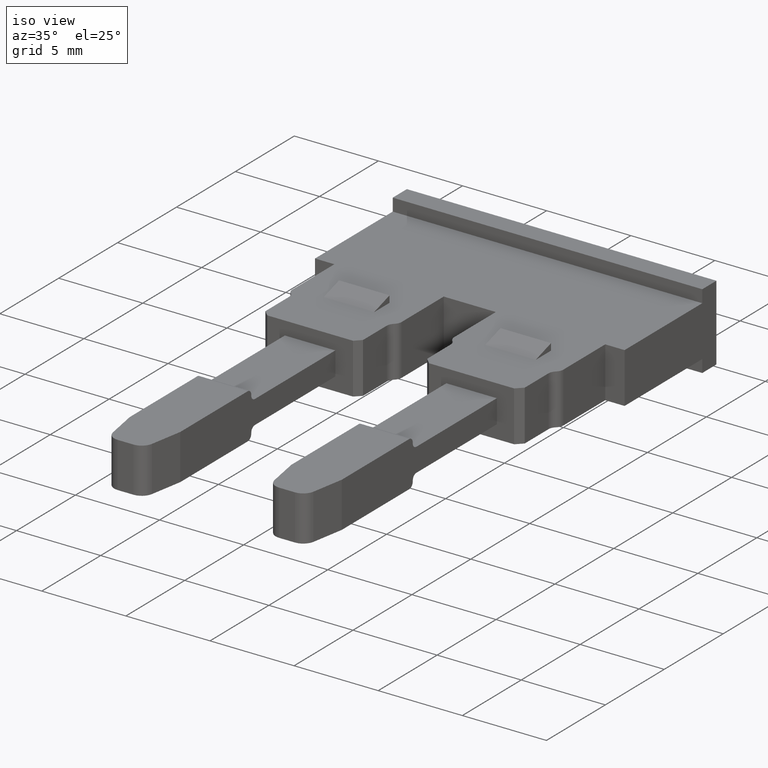
[diagram: clean part render]
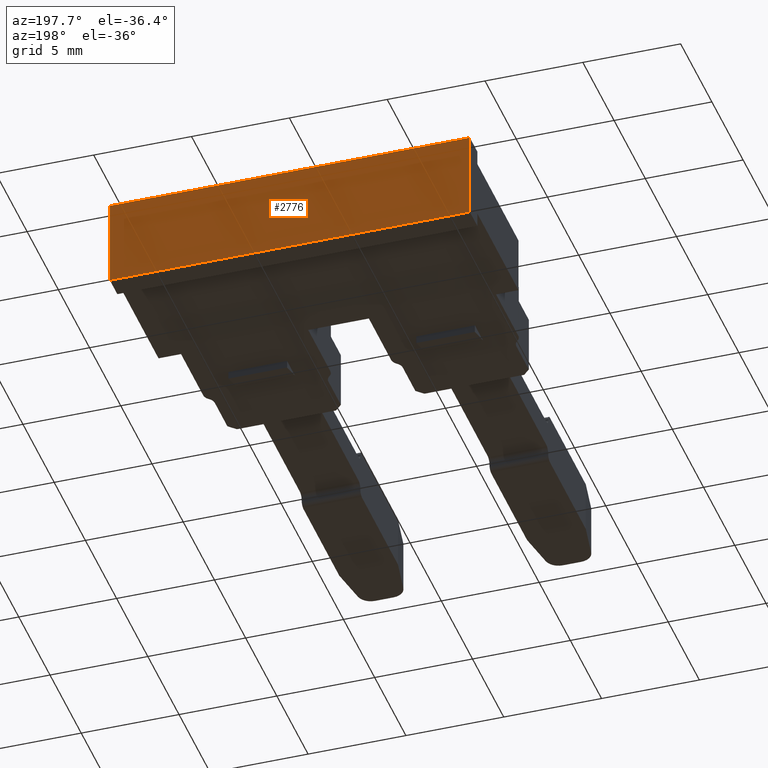
[diagram: tour spotlight — one face highlighted and labeled with its STEP entity id]
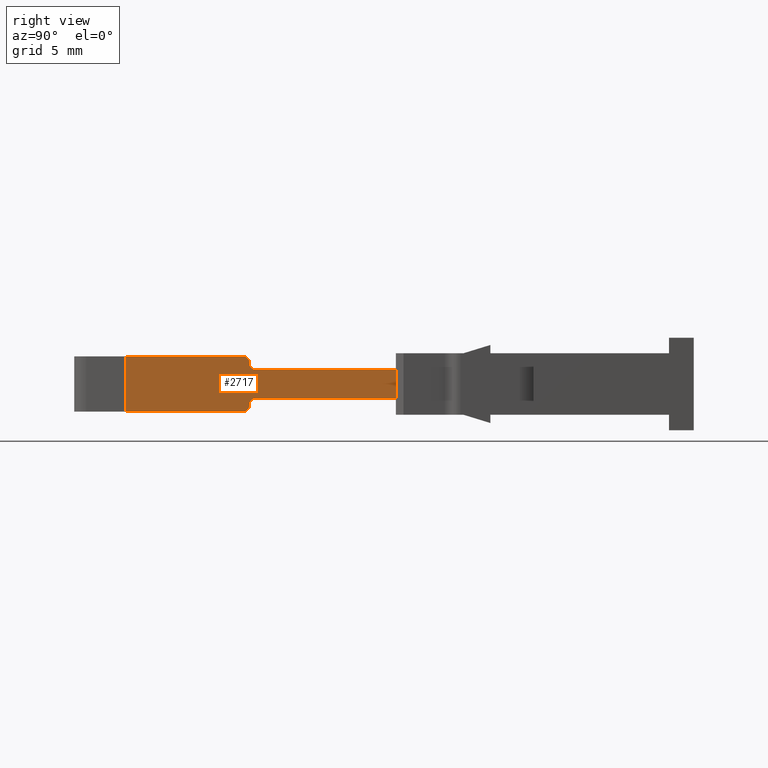
[diagram: tour spotlight — one face highlighted and labeled with its STEP entity id]
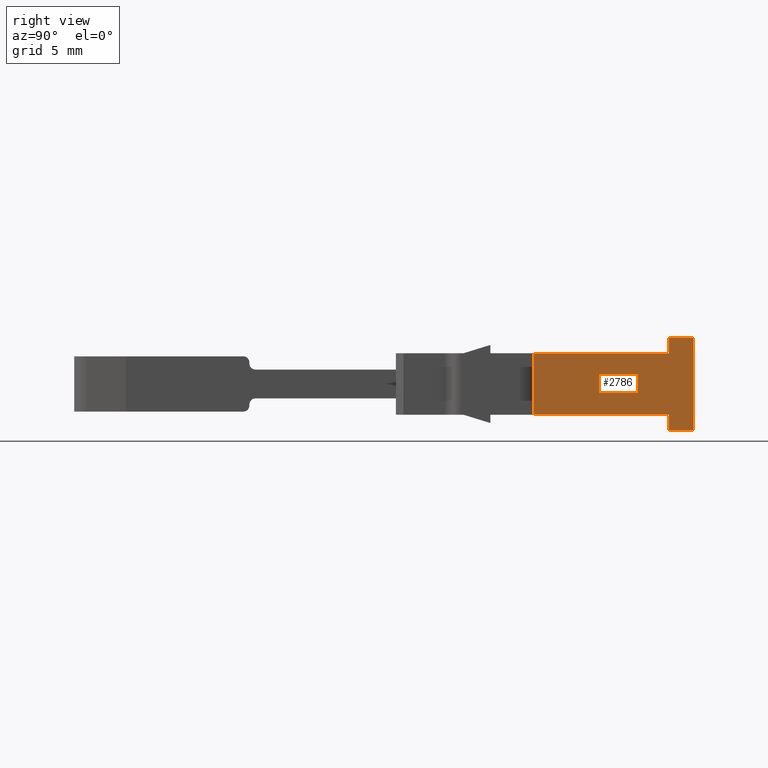
[diagram: tour spotlight — one face highlighted and labeled with its STEP entity id]
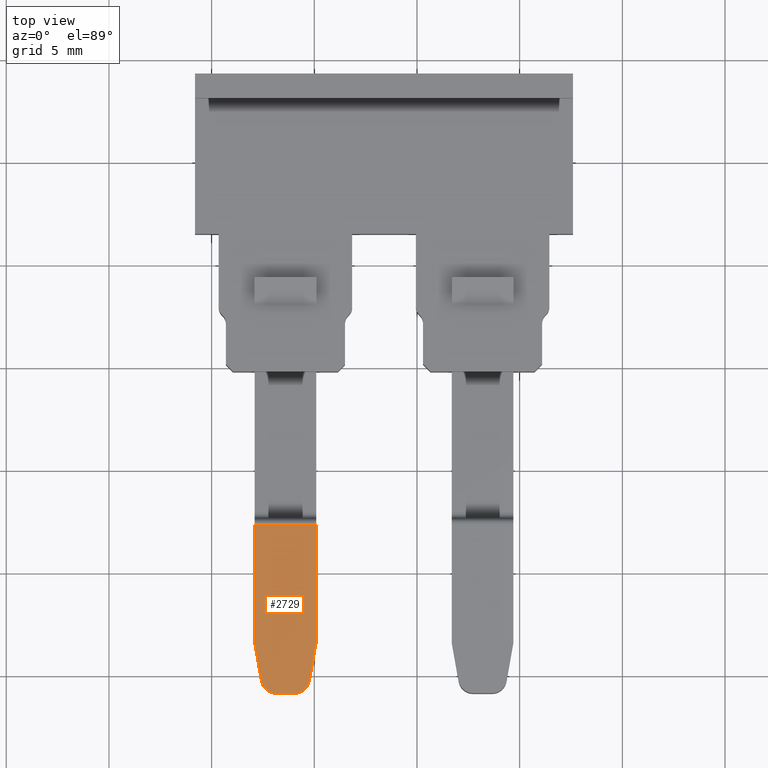
[diagram: tour spotlight — one face highlighted and labeled with its STEP entity id]
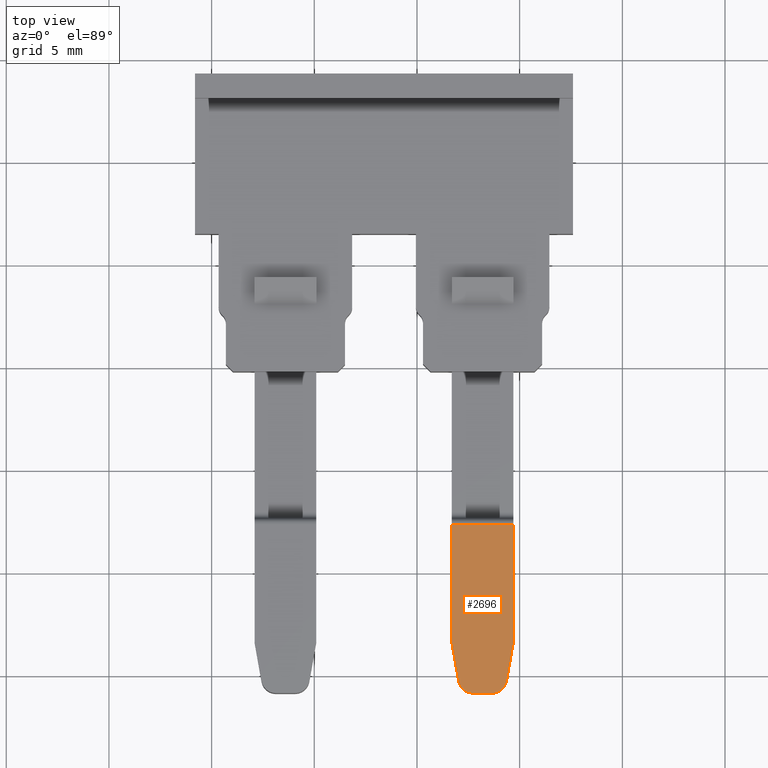
[diagram: tour spotlight — one face highlighted and labeled with its STEP entity id]
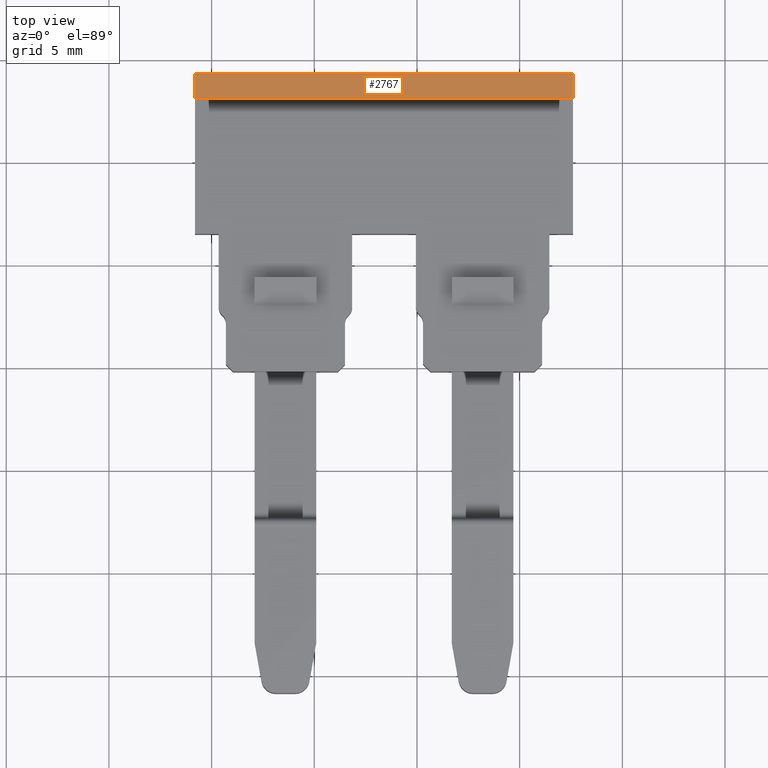
[diagram: tour spotlight — one face highlighted and labeled with its STEP entity id]
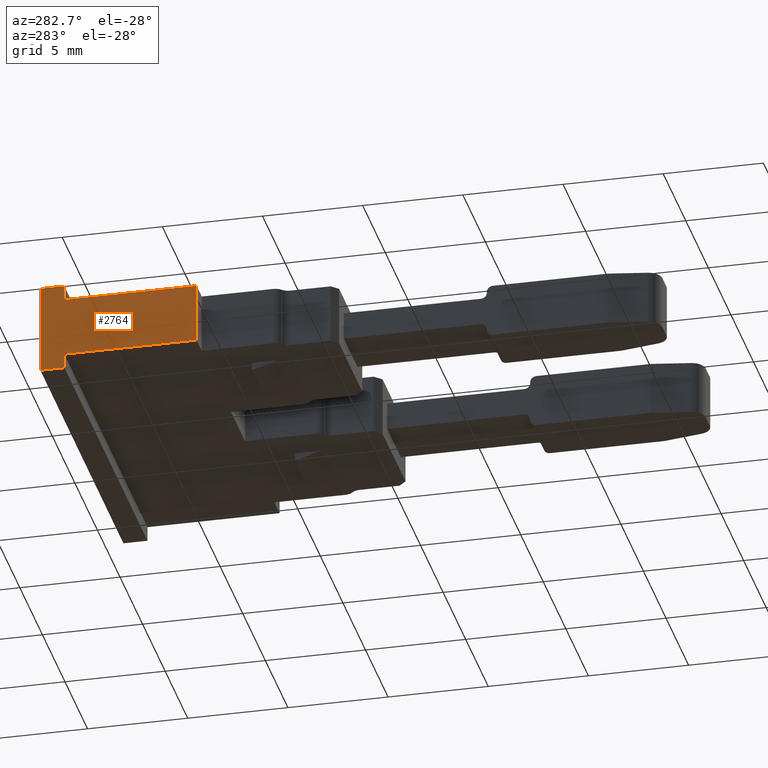
[diagram: tour spotlight — one face highlighted and labeled with its STEP entity id]
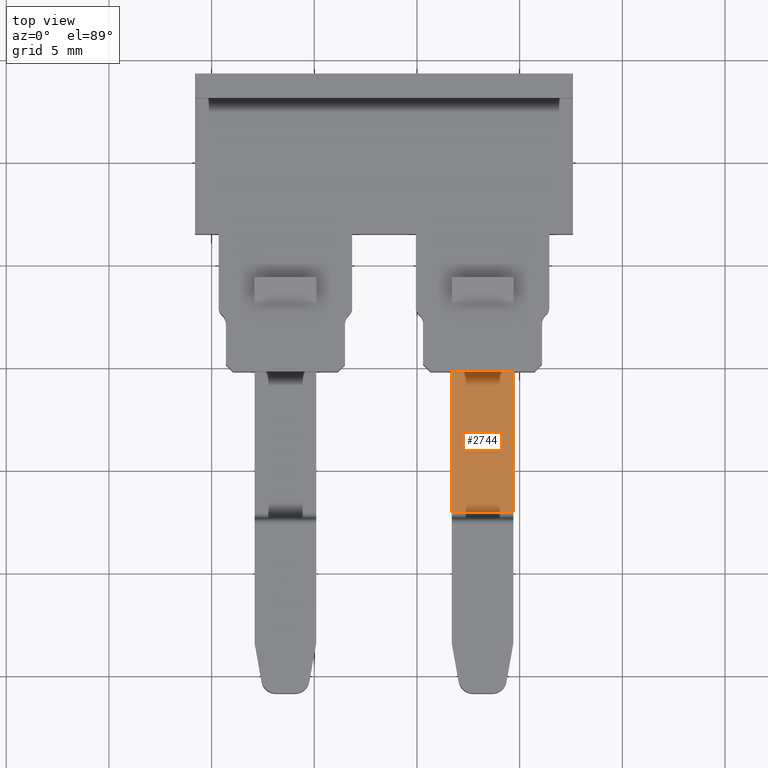
[diagram: tour spotlight — one face highlighted and labeled with its STEP entity id]
A machine part: a face-by-face anatomy tour. The part has 90 B-rep faces; the first image is the clean iso view, then the 8 largest visible faces are spotlighted one at a time (largest first), each with its STEP entity span.

Face 1 — auxiliary view, entity #2776. In plain terms, the highlighted planar face has unit normal (0, -1, 0).
Definition (entity closure, byte-faithful):
#32 = VECTOR ( 'NONE', #1054, 1000.000000000000000 ) ;
#48 = VECTOR ( 'NONE', #1185, 1000.000000000000000 ) ;
#60 = VECTOR ( 'NONE', #1169, 1000.000000000000000 ) ;
#68 = VECTOR ( 'NONE', #1140, 1000.000000000000000 ) ;
#224 = AXIS2_PLACEMENT_3D ( 'NONE', #804, #790, #821 ) ;
#790 = DIRECTION ( 'NONE',  ( 0.0000000000000000000, -1.000000000000000000, 0.0000000000000000000 ) ) ;
#796 = PLANE ( 'NONE',  #224 ) ;
#804 = CARTESIAN_POINT ( 'NONE',  ( 1139.194470802330000, 674.2878760720548100, 3.000000000000000000 ) ) ;
#821 = DIRECTION ( 'NONE',  ( 0.0000000000000000000, -0.0000000000000000000, -1.000000000000000000 ) ) ;
#827 = FACE_OUTER_BOUND ( 'NONE', #2494, .T. ) ;
#1054 = DIRECTION ( 'NONE',  ( 1.000000000000000000, 0.0000000000000000000, 0.0000000000000000000 ) ) ;
#1068 = LINE ( 'NONE', #1088, #32 ) ;
#1088 = CARTESIAN_POINT ( 'NONE',  ( 1139.194470802330000, 674.2878760720548100, -0.7499999999999997800 ) ) ;
#1095 = CARTESIAN_POINT ( 'NONE',  ( 1139.194470802330000, 674.2878760720548100, 3.750000000000000000 ) ) ;
#1115 = LINE ( 'NONE', #1095, #60 ) ;
#1140 = DIRECTION ( 'NONE',  ( -0.0000000000000000000, -0.0000000000000000000, -1.000000000000000000 ) ) ;
#1152 = LINE ( 'NONE', #1164, #68 ) ;
#1164 = CARTESIAN_POINT ( 'NONE',  ( 1157.594465032600300, 674.2878760720548100, 3.000000000000000000 ) ) ;
#1169 = DIRECTION ( 'NONE',  ( -1.000000000000000000, -0.0000000000000000000, -0.0000000000000000000 ) ) ;
#1185 = DIRECTION ( 'NONE',  ( -0.0000000000000000000, -0.0000000000000000000, 1.000000000000000000 ) ) ;
#1188 = LINE ( 'NONE', #1230, #48 ) ;
#1230 = CARTESIAN_POINT ( 'NONE',  ( 1139.194470802330000, 674.2878760720548100, 3.000000000000000000 ) ) ;
#1711 = VERTEX_POINT ( 'NONE', #2389 ) ;
#1745 = VERTEX_POINT ( 'NONE', #2388 ) ;
#1747 = VERTEX_POINT ( 'NONE', #2351 ) ;
#1751 = VERTEX_POINT ( 'NONE', #2360 ) ;
#1942 = ORIENTED_EDGE ( 'NONE', *, *, #2554, .F. ) ;
#1964 = ORIENTED_EDGE ( 'NONE', *, *, #2577, .F. ) ;
#1981 = ORIENTED_EDGE ( 'NONE', *, *, #2597, .T. ) ;
#1982 = ORIENTED_EDGE ( 'NONE', *, *, #2582, .T. ) ;
#2351 = CARTESIAN_POINT ( 'NONE',  ( 1157.594465032600300, 674.2878760720548100, 3.750000000000000000 ) ) ;
#2360 = CARTESIAN_POINT ( 'NONE',  ( 1157.594465032600300, 674.2878760720548100, -0.7499999999999997800 ) ) ;
#2388 = CARTESIAN_POINT ( 'NONE',  ( 1139.194470802330000, 674.2878760720548100, -0.7499999999999997800 ) ) ;
#2389 = CARTESIAN_POINT ( 'NONE',  ( 1139.194470802330000, 674.2878760720548100, 3.750000000000000000 ) ) ;
#2494 = EDGE_LOOP ( 'NONE', ( #1942, #1981, #1964, #1982 ) ) ;
#2554 = EDGE_CURVE ( 'NONE', #1745, #1751, #1068, .T. ) ;
#2577 = EDGE_CURVE ( 'NONE', #1747, #1711, #1115, .T. ) ;
#2582 = EDGE_CURVE ( 'NONE', #1747, #1751, #1152, .T. ) ;
#2597 = EDGE_CURVE ( 'NONE', #1745, #1711, #1188, .T. ) ;
#2776 = ADVANCED_FACE ( 'NONE', ( #827 ), #796, .F. ) ;

Face 2 — right view, entity #2717. In plain terms, the highlighted planar face has unit normal (-1, -0, -0).
Definition (entity closure, byte-faithful):
#211 = AXIS2_PLACEMENT_3D ( 'NONE', #502, #507, #514 ) ;
#291 = VECTOR ( 'NONE', #1498, 1000.000000000000000 ) ;
#294 = VECTOR ( 'NONE', #952, 1000.000000000000000 ) ;
#297 = CIRCLE ( 'NONE', #321, 0.2999999999999672400 ) ;
#304 = VECTOR ( 'NONE', #1621, 1000.000000000000000 ) ;
#308 = VECTOR ( 'NONE', #1624, 1000.000000000000100 ) ;
#310 = CIRCLE ( 'NONE', #311, 0.2999999999999674000 ) ;
#311 = AXIS2_PLACEMENT_3D ( 'NONE', #1602, #1639, #1648 ) ;
#321 = AXIS2_PLACEMENT_3D ( 'NONE', #1461, #1464, #1481 ) ;
#324 = VECTOR ( 'NONE', #1605, 1000.000000000000000 ) ;
#327 = VECTOR ( 'NONE', #1637, 1000.000000000000000 ) ;
#336 = VECTOR ( 'NONE', #971, 1000.000000000000000 ) ;
#340 = CIRCLE ( 'NONE', #341, 0.2999999999999672900 ) ;
#341 = AXIS2_PLACEMENT_3D ( 'NONE', #1617, #1610, #1600 ) ;
#352 = VECTOR ( 'NONE', #1545, 1000.000000000000100 ) ;
#354 = AXIS2_PLACEMENT_3D ( 'NONE', #1535, #1509, #1516 ) ;
#375 = CIRCLE ( 'NONE', #354, 0.2999999999999328800 ) ;
#487 = FACE_OUTER_BOUND ( 'NONE', #2529, .T. ) ;
#497 = PLANE ( 'NONE',  #211 ) ;
#502 = CARTESIAN_POINT ( 'NONE',  ( 1154.694458151265500, 634.1732509684160300, 1.500000000000051500 ) ) ;
#507 = DIRECTION ( 'NONE',  ( -0.9999999999997435400, -7.162729585980652700E-007, -5.364441115333136100E-014 ) ) ;
#514 = DIRECTION ( 'NONE',  ( 7.162729585980651700E-007, -0.9999999999997434300, 0.0000000000000000000 ) ) ;
#860 = LINE ( 'NONE', #1608, #308 ) ;
#952 = DIRECTION ( 'NONE',  ( 5.364441115334512500E-014, 0.0000000000000000000, -1.000000000000000000 ) ) ;
#971 = DIRECTION ( 'NONE',  ( -5.677532115032497500E-037, -1.000000000000000000, 1.058364141383339600E-023 ) ) ;
#974 = LINE ( 'NONE', #985, #294 ) ;
#983 = CARTESIAN_POINT ( 'NONE',  ( 1154.694444914909600, 641.5303140484550100, 2.200000000000050800 ) ) ;
#984 = LINE ( 'NONE', #983, #336 ) ;
#985 = CARTESIAN_POINT ( 'NONE',  ( 1154.694439803195100, 659.7892820011524000, 3.759999999999862100 ) ) ;
#1461 = CARTESIAN_POINT ( 'NONE',  ( 1154.694440091514700, 652.3527367076559400, 0.4522013187407246700 ) ) ;
#1464 = DIRECTION ( 'NONE',  ( -1.000000000000000000, 0.0000000000000000000, -5.364441115151316900E-014 ) ) ;
#1472 = LINE ( 'NONE', #1492, #291 ) ;
#1481 = DIRECTION ( 'NONE',  ( 0.0000000000000000000, 0.0000000000000000000, 1.000000000000000000 ) ) ;
#1492 = CARTESIAN_POINT ( 'NONE',  ( 1154.694440091515200, 652.6527367076765800, -8.894767489097951300 ) ) ;
#1498 = DIRECTION ( 'NONE',  ( 5.364441115151316900E-014, -0.0000000000000000000, -1.000000000000000000 ) ) ;
#1509 = DIRECTION ( 'NONE',  ( -0.9999999999997435400, -7.162729585980652700E-007, -5.364441115333136800E-014 ) ) ;
#1516 = DIRECTION ( 'NONE',  ( 7.162729668646924300E-007, -0.9999999999997435400, 0.0000000000000000000 ) ) ;
#1522 = CARTESIAN_POINT ( 'NONE',  ( 1154.694445129787700, 652.3527416319764100, 2.847804784785298100 ) ) ;
#1535 = CARTESIAN_POINT ( 'NONE',  ( 1154.694444700027600, 652.9527367076431100, 2.500000000000050600 ) ) ;
#1544 = LINE ( 'NONE', #1522, #352 ) ;
#1545 = DIRECTION ( 'NONE',  ( 7.162729585980651700E-007, -0.9999999999997434300, -1.798537245413692200E-012 ) ) ;
#1598 = LINE ( 'NONE', #1612, #304 ) ;
#1599 = LINE ( 'NONE', #1616, #324 ) ;
#1600 = DIRECTION ( 'NONE',  ( 0.0000000000000000000, 0.0000000000000000000, 1.000000000000000000 ) ) ;
#1602 = CARTESIAN_POINT ( 'NONE',  ( 1154.694440091514500, 652.3527367076559400, 2.547804784775002100 ) ) ;
#1605 = DIRECTION ( 'NONE',  ( 5.364441115151316900E-014, -0.0000000000000000000, -1.000000000000000000 ) ) ;
#1608 = CARTESIAN_POINT ( 'NONE',  ( 1154.694449230035600, 646.6283210584171000, 0.1522013187407240700 ) ) ;
#1610 = DIRECTION ( 'NONE',  ( 1.000000000000000000, -0.0000000000000000000, 5.364441115151316900E-014 ) ) ;
#1612 = CARTESIAN_POINT ( 'NONE',  ( 1154.694440091515200, 646.6283161340934400, -8.894767489097951300 ) ) ;
#1616 = CARTESIAN_POINT ( 'NONE',  ( 1154.694440091515200, 652.6527367076765800, -8.894767489097951300 ) ) ;
#1617 = CARTESIAN_POINT ( 'NONE',  ( 1154.694440091514700, 652.9527367076971100, 0.5000061035156759800 ) ) ;
#1618 = CARTESIAN_POINT ( 'NONE',  ( 1154.694444700027600, 641.5303140484550100, 0.8000061035156760300 ) ) ;
#1621 = DIRECTION ( 'NONE',  ( 5.202683949995305800E-014, -9.173720110939495000E-015, -1.000000000000000000 ) ) ;
#1624 = DIRECTION ( 'NONE',  ( -7.162729585980651700E-007, 0.9999999999997434300, -8.974220355951169400E-013 ) ) ;
#1636 = LINE ( 'NONE', #1618, #327 ) ;
#1637 = DIRECTION ( 'NONE',  ( 5.677532115032497500E-037, 1.000000000000000000, -1.058364141383339600E-023 ) ) ;
#1639 = DIRECTION ( 'NONE',  ( -1.000000000000000000, 0.0000000000000000000, -5.364441115151316900E-014 ) ) ;
#1648 = DIRECTION ( 'NONE',  ( 0.0000000000000000000, 0.0000000000000000000, 1.000000000000000000 ) ) ;
#1708 = VERTEX_POINT ( 'NONE', #2345 ) ;
#1710 = VERTEX_POINT ( 'NONE', #2368 ) ;
#1720 = VERTEX_POINT ( 'NONE', #2372 ) ;
#1722 = VERTEX_POINT ( 'NONE', #2357 ) ;
#1725 = VERTEX_POINT ( 'NONE', #2346 ) ;
#1726 = VERTEX_POINT ( 'NONE', #2347 ) ;
#1730 = VERTEX_POINT ( 'NONE', #2378 ) ;
#1733 = VERTEX_POINT ( 'NONE', #2404 ) ;
#1738 = VERTEX_POINT ( 'NONE', #2387 ) ;
#1740 = VERTEX_POINT ( 'NONE', #2398 ) ;
#1741 = VERTEX_POINT ( 'NONE', #2366 ) ;
#1743 = VERTEX_POINT ( 'NONE', #2350 ) ;
#1855 = ORIENTED_EDGE ( 'NONE', *, *, #2858, .F. ) ;
#1876 = ORIENTED_EDGE ( 'NONE', *, *, #2869, .T. ) ;
#1880 = ORIENTED_EDGE ( 'NONE', *, *, #2859, .F. ) ;
#1882 = ORIENTED_EDGE ( 'NONE', *, *, #2837, .F. ) ;
#1892 = ORIENTED_EDGE ( 'NONE', *, *, #2842, .T. ) ;
#1898 = ORIENTED_EDGE ( 'NONE', *, *, #2830, .F. ) ;
#1899 = ORIENTED_EDGE ( 'NONE', *, *, #2836, .F. ) ;
#1907 = ORIENTED_EDGE ( 'NONE', *, *, #2848, .F. ) ;
#1908 = ORIENTED_EDGE ( 'NONE', *, *, #2877, .T. ) ;
#1909 = ORIENTED_EDGE ( 'NONE', *, *, #2840, .T. ) ;
#1910 = ORIENTED_EDGE ( 'NONE', *, *, #2835, .T. ) ;
#1917 = ORIENTED_EDGE ( 'NONE', *, *, #2826, .T. ) ;
#2345 = CARTESIAN_POINT ( 'NONE',  ( 1154.694445129791300, 652.3527367076559400, 2.847804784785298100 ) ) ;
#2346 = CARTESIAN_POINT ( 'NONE',  ( 1154.694444914909600, 652.6527367076662400, 2.547804784775054900 ) ) ;
#2347 = CARTESIAN_POINT ( 'NONE',  ( 1154.694444807468700, 652.9527367076417500, 2.200000000000128100 ) ) ;
#2350 = CARTESIAN_POINT ( 'NONE',  ( 1154.694445129791600, 652.3527367076611700, 0.1522013187355868400 ) ) ;
#2357 = CARTESIAN_POINT ( 'NONE',  ( 1154.694442503212000, 652.6527367076482700, 2.500000000000050600 ) ) ;
#2366 = CARTESIAN_POINT ( 'NONE',  ( 1154.694444914909600, 659.7892820011524000, 2.200000000000050800 ) ) ;
#2368 = CARTESIAN_POINT ( 'NONE',  ( 1154.694449230039300, 646.6283161340936700, 0.1522013187403555300 ) ) ;
#2372 = CARTESIAN_POINT ( 'NONE',  ( 1154.694444914909600, 652.6527367076623700, 0.4522013187405647900 ) ) ;
#2378 = CARTESIAN_POINT ( 'NONE',  ( 1154.694444700027600, 659.7892820011524000, 0.8000061035156760300 ) ) ;
#2387 = CARTESIAN_POINT ( 'NONE',  ( 1154.694444700027800, 652.9527367076701700, 0.8000061035298857700 ) ) ;
#2398 = CARTESIAN_POINT ( 'NONE',  ( 1154.694444914909600, 652.6527367076817000, 0.5000061035157291600 ) ) ;
#2404 = CARTESIAN_POINT ( 'NONE',  ( 1154.694447179915200, 646.6283161340935500, 2.847804784775002800 ) ) ;
#2529 = EDGE_LOOP ( 'NONE', ( #1882, #1892, #1898, #1917, #1876, #1899, #1907, #1908, #1909, #1910, #1880, #1855 ) ) ;
#2717 = ADVANCED_FACE ( 'NONE', ( #487 ), #497, .F. ) ;
#2826 = EDGE_CURVE ( 'NONE', #1741, #1726, #984, .T. ) ;
#2830 = EDGE_CURVE ( 'NONE', #1741, #1730, #974, .T. ) ;
#2835 = EDGE_CURVE ( 'NONE', #1710, #1743, #860, .T. ) ;
#2836 = EDGE_CURVE ( 'NONE', #1725, #1722, #1599, .T. ) ;
#2837 = EDGE_CURVE ( 'NONE', #1738, #1740, #340, .T. ) ;
#2840 = EDGE_CURVE ( 'NONE', #1733, #1710, #1598, .T. ) ;
#2842 = EDGE_CURVE ( 'NONE', #1738, #1730, #1636, .T. ) ;
#2848 = EDGE_CURVE ( 'NONE', #1708, #1725, #310, .T. ) ;
#2858 = EDGE_CURVE ( 'NONE', #1740, #1720, #1472, .T. ) ;
#2859 = EDGE_CURVE ( 'NONE', #1720, #1743, #297, .T. ) ;
#2869 = EDGE_CURVE ( 'NONE', #1726, #1722, #375, .T. ) ;
#2877 = EDGE_CURVE ( 'NONE', #1708, #1733, #1544, .T. ) ;

Face 3 — right view, entity #2786. In plain terms, the highlighted planar face has unit normal (-1, 0, 0).
Definition (entity closure, byte-faithful):
#25 = VECTOR ( 'NONE', #1096, 1000.000000000000000 ) ;
#34 = VECTOR ( 'NONE', #1126, 1000.000000000000000 ) ;
#66 = VECTOR ( 'NONE', #1110, 1000.000000000000000 ) ;
#68 = VECTOR ( 'NONE', #1140, 1000.000000000000000 ) ;
#232 = AXIS2_PLACEMENT_3D ( 'NONE', #885, #871, #840 ) ;
#312 = VECTOR ( 'NONE', #1537, 1000.000000000000000 ) ;
#346 = VECTOR ( 'NONE', #1607, 1000.000000000000000 ) ;
#361 = VECTOR ( 'NONE', #1528, 1000.000000000000000 ) ;
#372 = VECTOR ( 'NONE', #1511, 1000.000000000000000 ) ;
#840 = DIRECTION ( 'NONE',  ( 0.0000000000000000000, 0.0000000000000000000, 1.000000000000000000 ) ) ;
#870 = FACE_OUTER_BOUND ( 'NONE', #2522, .T. ) ;
#871 = DIRECTION ( 'NONE',  ( -1.000000000000000000, 0.0000000000000000000, 0.0000000000000000000 ) ) ;
#879 = PLANE ( 'NONE',  #232 ) ;
#885 = CARTESIAN_POINT ( 'NONE',  ( 1157.594465032600300, 666.6212584401425800, 3.000000000000000000 ) ) ;
#1081 = LINE ( 'NONE', #1085, #25 ) ;
#1082 = LINE ( 'NONE', #1135, #34 ) ;
#1085 = CARTESIAN_POINT ( 'NONE',  ( 1157.594465032600300, 666.4912584401425900, 3.000000000000000000 ) ) ;
#1091 = CARTESIAN_POINT ( 'NONE',  ( 1157.594465032600300, 673.0878760720547700, -0.7499999999999997800 ) ) ;
#1096 = DIRECTION ( 'NONE',  ( 0.0000000000000000000, 0.0000000000000000000, 1.000000000000000000 ) ) ;
#1110 = DIRECTION ( 'NONE',  ( -0.0000000000000000000, 0.0000000000000000000, 1.000000000000000000 ) ) ;
#1126 = DIRECTION ( 'NONE',  ( -0.0000000000000000000, 1.000000000000000000, 0.0000000000000000000 ) ) ;
#1133 = LINE ( 'NONE', #1091, #66 ) ;
#1135 = CARTESIAN_POINT ( 'NONE',  ( 1157.594465032600300, 673.0878760720547700, -0.7499999999999997800 ) ) ;
#1140 = DIRECTION ( 'NONE',  ( -0.0000000000000000000, -0.0000000000000000000, -1.000000000000000000 ) ) ;
#1152 = LINE ( 'NONE', #1164, #68 ) ;
#1164 = CARTESIAN_POINT ( 'NONE',  ( 1157.594465032600300, 674.2878760720548100, 3.000000000000000000 ) ) ;
#1458 = CARTESIAN_POINT ( 'NONE',  ( 1157.594465032600300, 673.0878760720547700, 3.000000000000000000 ) ) ;
#1500 = LINE ( 'NONE', #1458, #312 ) ;
#1504 = LINE ( 'NONE', #1515, #361 ) ;
#1511 = DIRECTION ( 'NONE',  ( -0.0000000000000000000, -1.000000000000000000, 0.0000000000000000000 ) ) ;
#1515 = CARTESIAN_POINT ( 'NONE',  ( 1157.594465032600300, 662.1736497164254200, 3.000000000000000000 ) ) ;
#1528 = DIRECTION ( 'NONE',  ( -0.0000000000000000000, -1.000000000000000000, -0.0000000000000000000 ) ) ;
#1530 = LINE ( 'NONE', #1531, #372 ) ;
#1531 = CARTESIAN_POINT ( 'NONE',  ( 1157.594465032600300, 666.6212584401425800, 0.0000000000000000000 ) ) ;
#1537 = DIRECTION ( 'NONE',  ( 0.0000000000000000000, 0.0000000000000000000, 1.000000000000000000 ) ) ;
#1607 = DIRECTION ( 'NONE',  ( -0.0000000000000000000, 1.000000000000000000, 0.0000000000000000000 ) ) ;
#1609 = LINE ( 'NONE', #1625, #346 ) ;
#1625 = CARTESIAN_POINT ( 'NONE',  ( 1157.594465032600300, 673.0878760720547700, 3.750000000000000000 ) ) ;
#1699 = VERTEX_POINT ( 'NONE', #2395 ) ;
#1700 = VERTEX_POINT ( 'NONE', #2363 ) ;
#1704 = VERTEX_POINT ( 'NONE', #2491 ) ;
#1747 = VERTEX_POINT ( 'NONE', #2351 ) ;
#1751 = VERTEX_POINT ( 'NONE', #2360 ) ;
#1759 = VERTEX_POINT ( 'NONE', #2374 ) ;
#1781 = VERTEX_POINT ( 'NONE', #2406 ) ;
#1831 = VERTEX_POINT ( 'NONE', #2469 ) ;
#1990 = ORIENTED_EDGE ( 'NONE', *, *, #2561, .F. ) ;
#1994 = ORIENTED_EDGE ( 'NONE', *, *, #2565, .T. ) ;
#1997 = ORIENTED_EDGE ( 'NONE', *, *, #2876, .T. ) ;
#2002 = ORIENTED_EDGE ( 'NONE', *, *, #2569, .F. ) ;
#2061 = ORIENTED_EDGE ( 'NONE', *, *, #2847, .F. ) ;
#2068 = ORIENTED_EDGE ( 'NONE', *, *, #2865, .F. ) ;
#2075 = ORIENTED_EDGE ( 'NONE', *, *, #2582, .F. ) ;
#2085 = ORIENTED_EDGE ( 'NONE', *, *, #2878, .F. ) ;
#2351 = CARTESIAN_POINT ( 'NONE',  ( 1157.594465032600300, 674.2878760720548100, 3.750000000000000000 ) ) ;
#2360 = CARTESIAN_POINT ( 'NONE',  ( 1157.594465032600300, 674.2878760720548100, -0.7499999999999997800 ) ) ;
#2363 = CARTESIAN_POINT ( 'NONE',  ( 1157.594465032600300, 673.0878760720547700, 0.0000000000000000000 ) ) ;
#2374 = CARTESIAN_POINT ( 'NONE',  ( 1157.594465032600300, 666.4912584401425900, 3.000000000000000000 ) ) ;
#2395 = CARTESIAN_POINT ( 'NONE',  ( 1157.594465032600300, 673.0878760720547700, 3.750000000000000000 ) ) ;
#2406 = CARTESIAN_POINT ( 'NONE',  ( 1157.594465032600300, 673.0878760720547700, 3.000000000000000000 ) ) ;
#2469 = CARTESIAN_POINT ( 'NONE',  ( 1157.594465032600300, 666.4912584401425900, 0.0000000000000000000 ) ) ;
#2491 = CARTESIAN_POINT ( 'NONE',  ( 1157.594465032600300, 673.0878760720547700, -0.7499999999999997800 ) ) ;
#2522 = EDGE_LOOP ( 'NONE', ( #2002, #1994, #2075, #2061, #2068, #1997, #1990, #2085 ) ) ;
#2561 = EDGE_CURVE ( 'NONE', #1831, #1759, #1081, .T. ) ;
#2565 = EDGE_CURVE ( 'NONE', #1704, #1751, #1082, .T. ) ;
#2569 = EDGE_CURVE ( 'NONE', #1704, #1700, #1133, .T. ) ;
#2582 = EDGE_CURVE ( 'NONE', #1747, #1751, #1152, .T. ) ;
#2786 = ADVANCED_FACE ( 'NONE', ( #870 ), #879, .F. ) ;
#2847 = EDGE_CURVE ( 'NONE', #1699, #1747, #1609, .T. ) ;
#2865 = EDGE_CURVE ( 'NONE', #1781, #1699, #1500, .T. ) ;
#2876 = EDGE_CURVE ( 'NONE', #1781, #1759, #1504, .T. ) ;
#2878 = EDGE_CURVE ( 'NONE', #1700, #1831, #1530, .T. ) ;

Face 4 — top view, entity #2729. In plain terms, the highlighted planar face has unit normal (-0, 0, 1).
Definition (entity closure, byte-faithful):
#123 = CIRCLE ( 'NONE', #138, 0.6999999999999229100 ) ;
#127 = VECTOR ( 'NONE', #1331, 1000.000000000000100 ) ;
#138 = AXIS2_PLACEMENT_3D ( 'NONE', #1400, #1396, #1402 ) ;
#170 = VECTOR ( 'NONE', #426, 1000.000000000000000 ) ;
#174 = VECTOR ( 'NONE', #554, 1000.000000000000100 ) ;
#176 = VECTOR ( 'NONE', #413, 1000.000000000000000 ) ;
#178 = VECTOR ( 'NONE', #378, 1000.000000000000000 ) ;
#189 = VECTOR ( 'NONE', #559, 1000.000000000000100 ) ;
#219 = AXIS2_PLACEMENT_3D ( 'NONE', #569, #565, #532 ) ;
#377 = CARTESIAN_POINT ( 'NONE',  ( 1135.207395039572200, 644.1282913512167200, 2.847804784774895700 ) ) ;
#378 = DIRECTION ( 'NONE',  ( 1.000000000000000000, -1.720418656508634100E-014, -0.0000000000000000000 ) ) ;
#379 = LINE ( 'NONE', #419, #176 ) ;
#413 = DIRECTION ( 'NONE',  ( -0.0000000000000000000, -1.000000000000000000, -0.0000000000000000000 ) ) ;
#419 = CARTESIAN_POINT ( 'NONE',  ( 1142.094434011690700, 652.6527719075244200, 2.847804784774840700 ) ) ;
#421 = LINE ( 'NONE', #377, #178 ) ;
#422 = CARTESIAN_POINT ( 'NONE',  ( 1142.094434011690700, 646.6283161340936700, 2.847804784774840700 ) ) ;
#426 = DIRECTION ( 'NONE',  ( 0.1736478946976646700, -0.9848078029072824300, -0.0000000000000000000 ) ) ;
#464 = LINE ( 'NONE', #422, #170 ) ;
#474 = CARTESIAN_POINT ( 'NONE',  ( 1144.755614559366700, 644.7067378249282700, 2.847804784774987200 ) ) ;
#476 = CARTESIAN_POINT ( 'NONE',  ( 1144.755614559366700, 644.7067378249282700, 2.847804784774984100 ) ) ;
#481 = CARTESIAN_POINT ( 'NONE',  ( 1144.727327763530400, 644.5463151644213400, 2.847804784774983200 ) ) ;
#485 = LINE ( 'NONE', #476, #189 ) ;
#525 = CARTESIAN_POINT ( 'NONE',  ( 1144.640987157445100, 644.3967687734993900, 2.847804784774977900 ) ) ;
#527 = CARTESIAN_POINT ( 'NONE',  ( 1144.391413844856700, 644.1873518378539500, 2.847804784774964600 ) ) ;
#532 = DIRECTION ( 'NONE',  ( 1.000000000000000000, 0.0000000000000000000, 5.364441115334514400E-014 ) ) ;
#536 = CARTESIAN_POINT ( 'NONE',  ( 1144.229146527706700, 644.1282913512168300, 2.847804784774955700 ) ) ;
#537 = CARTESIAN_POINT ( 'NONE',  ( 1144.066249097331400, 644.1282913512167200, 2.847804784774927700 ) ) ;
#540 = LINE ( 'NONE', #553, #174 ) ;
#553 = CARTESIAN_POINT ( 'NONE',  ( 1145.094445258716900, 652.3527416319764100, 2.847804784787907600 ) ) ;
#554 = DIRECTION ( 'NONE',  ( 7.162729585980651700E-007, -0.9999999999997434300, -2.254383868701461200E-012 ) ) ;
#558 = FACE_OUTER_BOUND ( 'NONE', #1676, .T. ) ;
#559 = DIRECTION ( 'NONE',  ( 0.1736478946976743900, 0.9848078029072806500, 9.334970462687131000E-015 ) ) ;
#565 = DIRECTION ( 'NONE',  ( -5.364441115334514400E-014, 1.058364141383339600E-023, 1.000000000000000000 ) ) ;
#568 = PLANE ( 'NONE',  #219 ) ;
#569 = CARTESIAN_POINT ( 'NONE',  ( 1146.094434382171400, 641.5303140484550100, 2.847804784775056100 ) ) ;
#1006 = CARTESIAN_POINT ( 'NONE',  ( 1145.094440091514300, 646.6283161340935500, 2.847804784775002800 ) ) ;
#1018 = CARTESIAN_POINT ( 'NONE',  ( 1145.094445258720500, 652.3527367076559400, 2.847804784789210100 ) ) ;
#1019 = CARTESIAN_POINT ( 'NONE',  ( 1144.755614559366700, 644.7067378249282700, 2.847804784774987200 ) ) ;
#1028 = CARTESIAN_POINT ( 'NONE',  ( 1142.094434011690700, 646.6283161340937800, 2.847804784774840700 ) ) ;
#1042 = CARTESIAN_POINT ( 'NONE',  ( 1142.433259543838400, 644.7067378249282700, 2.847804784774850400 ) ) ;
#1331 = DIRECTION ( 'NONE',  ( -0.9999999999311652800, 1.173325889926041300E-005, -5.363175877137947600E-014 ) ) ;
#1334 = LINE ( 'NONE', #1356, #127 ) ;
#1356 = CARTESIAN_POINT ( 'NONE',  ( 1145.094440091514300, 652.3527367076559400, 2.847804784775002300 ) ) ;
#1396 = DIRECTION ( 'NONE',  ( -5.364441115151316900E-014, -2.347622273454535600E-024, 1.000000000000000000 ) ) ;
#1400 = CARTESIAN_POINT ( 'NONE',  ( 1143.122625005873500, 644.8282913512166500, 2.847804784774896200 ) ) ;
#1402 = DIRECTION ( 'NONE',  ( 1.000000000000000000, 0.0000000000000000000, 5.390033657499958300E-014 ) ) ;
#1676 = EDGE_LOOP ( 'NONE', ( #2189, #2171, #2186, #2176, #2192, #2230, #2178, #2190 ) ) ;
#1826 = VERTEX_POINT ( 'NONE', #2436 ) ;
#1828 = VERTEX_POINT ( 'NONE', #2407 ) ;
#1838 = VERTEX_POINT ( 'NONE', #2476 ) ;
#1847 = VERTEX_POINT ( 'NONE', #1019 ) ;
#1854 = VERTEX_POINT ( 'NONE', #1028 ) ;
#1859 = VERTEX_POINT ( 'NONE', #1018 ) ;
#1865 = VERTEX_POINT ( 'NONE', #1042 ) ;
#1871 = VERTEX_POINT ( 'NONE', #1006 ) ;
#2171 = ORIENTED_EDGE ( 'NONE', *, *, #2644, .T. ) ;
#2176 = ORIENTED_EDGE ( 'NONE', *, *, #2709, .T. ) ;
#2178 = ORIENTED_EDGE ( 'NONE', *, *, #2724, .F. ) ;
#2186 = ORIENTED_EDGE ( 'NONE', *, *, #2685, .T. ) ;
#2189 = ORIENTED_EDGE ( 'NONE', *, *, #2723, .F. ) ;
#2190 = ORIENTED_EDGE ( 'NONE', *, *, #2720, .T. ) ;
#2192 = ORIENTED_EDGE ( 'NONE', *, *, #2665, .T. ) ;
#2230 = ORIENTED_EDGE ( 'NONE', *, *, #2693, .T. ) ;
#2407 = CARTESIAN_POINT ( 'NONE',  ( 1142.094434011690700, 652.3527719075091200, 2.847804784774824700 ) ) ;
#2436 = CARTESIAN_POINT ( 'NONE',  ( 1144.066249097331400, 644.1282913512167200, 2.847804784774927700 ) ) ;
#2476 = CARTESIAN_POINT ( 'NONE',  ( 1143.122625005873500, 644.1282913512167200, 2.847804784774896200 ) ) ;
#2644 = EDGE_CURVE ( 'NONE', #1859, #1828, #1334, .T. ) ;
#2665 = EDGE_CURVE ( 'NONE', #1865, #1838, #123, .T. ) ;
#2685 = EDGE_CURVE ( 'NONE', #1828, #1854, #379, .T. ) ;
#2693 = EDGE_CURVE ( 'NONE', #1838, #1826, #421, .T. ) ;
#2709 = EDGE_CURVE ( 'NONE', #1854, #1865, #464, .T. ) ;
#2720 = EDGE_CURVE ( 'NONE', #1847, #1871, #485, .T. ) ;
#2723 = EDGE_CURVE ( 'NONE', #1859, #1871, #540, .T. ) ;
#2724 = EDGE_CURVE ( 'NONE', #1847, #1826, #2885, .T. ) ;
#2729 = ADVANCED_FACE ( 'NONE', ( #558 ), #568, .T. ) ;
#2885 = B_SPLINE_CURVE_WITH_KNOTS ( 'NONE', 3,
 ( #474, #481, #525, #527, #536, #537 ),
 .UNSPECIFIED., .F., .F.,
 ( 4, 2, 4 ),
 ( 0.0000000000000000000, 0.5000000000000000000, 1.000000000000000000 ),
 .UNSPECIFIED. ) ;

Face 5 — top view, entity #2696. In plain terms, the highlighted planar face has unit normal (-0, 0, 1).
Definition (entity closure, byte-faithful):
#185 = AXIS2_PLACEMENT_3D ( 'NONE', #460, #440, #428 ) ;
#306 = VECTOR ( 'NONE', #673, 1000.000000000000100 ) ;
#317 = VECTOR ( 'NONE', #882, 1000.000000000000100 ) ;
#323 = VECTOR ( 'NONE', #1489, 1000.000000000000100 ) ;
#350 = VECTOR ( 'NONE', #1523, 1000.000000000000000 ) ;
#352 = VECTOR ( 'NONE', #1545, 1000.000000000000100 ) ;
#370 = VECTOR ( 'NONE', #1542, 1000.000000000000000 ) ;
#416 = FACE_OUTER_BOUND ( 'NONE', #2503, .T. ) ;
#428 = DIRECTION ( 'NONE',  ( 1.000000000000000000, 0.0000000000000000000, 5.364441115334514400E-014 ) ) ;
#440 = DIRECTION ( 'NONE',  ( -5.364441115334514400E-014, 1.058364141383339600E-023, 1.000000000000000000 ) ) ;
#460 = CARTESIAN_POINT ( 'NONE',  ( 1155.694434382171300, 641.5303140484550100, 2.847804784775056100 ) ) ;
#463 = PLANE ( 'NONE',  #185 ) ;
#622 = CARTESIAN_POINT ( 'NONE',  ( 1154.355614559366800, 644.7067378249282700, 2.847804784774984100 ) ) ;
#673 = DIRECTION ( 'NONE',  ( 0.1736478946976743900, 0.9848078029072806500, 9.334970462687131000E-015 ) ) ;
#712 = CARTESIAN_POINT ( 'NONE',  ( 1154.694440091514500, 652.3527367076559400, 2.847804784775002300 ) ) ;
#882 = DIRECTION ( 'NONE',  ( -0.9999999999311652800, 1.173325889926041300E-005, -5.363175877137947600E-014 ) ) ;
#975 = LINE ( 'NONE', #622, #306 ) ;
#1105 = LINE ( 'NONE', #712, #317 ) ;
#1459 = CARTESIAN_POINT ( 'NONE',  ( 1151.694434011690900, 652.6527719075244200, 2.847804784774840700 ) ) ;
#1468 = CARTESIAN_POINT ( 'NONE',  ( 1152.397460258348500, 644.1873518378540700, 2.847804784774878900 ) ) ;
#1469 = CARTESIAN_POINT ( 'NONE',  ( 1152.147886945759600, 644.3967687734993900, 2.847804784774865500 ) ) ;
#1486 = CARTESIAN_POINT ( 'NONE',  ( 1152.559727575498800, 644.1282913512169400, 2.847804784774888600 ) ) ;
#1487 = CARTESIAN_POINT ( 'NONE',  ( 1152.061546339674800, 644.5463151644213400, 2.847804784774861100 ) ) ;
#1488 = CARTESIAN_POINT ( 'NONE',  ( 1152.033259543838500, 644.7067378249283800, 2.847804784774855300 ) ) ;
#1489 = DIRECTION ( 'NONE',  ( 0.1736478946976646700, -0.9848078029072824300, 9.334970462686607200E-015 ) ) ;
#1501 = LINE ( 'NONE', #1459, #350 ) ;
#1502 = CARTESIAN_POINT ( 'NONE',  ( 1152.722625005873900, 644.1282913512167200, 2.847804784774896200 ) ) ;
#1519 = CARTESIAN_POINT ( 'NONE',  ( 1144.807395039572600, 644.1282913512167200, 2.847804784774895700 ) ) ;
#1522 = CARTESIAN_POINT ( 'NONE',  ( 1154.694445129787700, 652.3527416319764100, 2.847804784785298100 ) ) ;
#1523 = DIRECTION ( 'NONE',  ( -0.0000000000000000000, -1.000000000000000000, -0.0000000000000000000 ) ) ;
#1524 = LINE ( 'NONE', #1519, #370 ) ;
#1542 = DIRECTION ( 'NONE',  ( 1.000000000000000000, -1.720418656508634100E-014, -0.0000000000000000000 ) ) ;
#1544 = LINE ( 'NONE', #1522, #352 ) ;
#1545 = DIRECTION ( 'NONE',  ( 7.162729585980651700E-007, -0.9999999999997434300, -1.798537245413692200E-012 ) ) ;
#1596 = CARTESIAN_POINT ( 'NONE',  ( 1154.327327763530300, 644.5463151644213400, 2.847804784774983200 ) ) ;
#1597 = CARTESIAN_POINT ( 'NONE',  ( 1154.240987157445300, 644.3967687734993900, 2.847804784774977900 ) ) ;
#1606 = CARTESIAN_POINT ( 'NONE',  ( 1153.666249097331500, 644.1282913512167200, 2.847804784774927700 ) ) ;
#1629 = CARTESIAN_POINT ( 'NONE',  ( 1154.355614559366800, 644.7067378249282700, 2.847804784774987200 ) ) ;
#1634 = CARTESIAN_POINT ( 'NONE',  ( 1153.991413844856700, 644.1873518378539500, 2.847804784774964600 ) ) ;
#1635 = CARTESIAN_POINT ( 'NONE',  ( 1153.829146527706800, 644.1282913512168300, 2.847804784774955700 ) ) ;
#1644 = LINE ( 'NONE', #1645, #323 ) ;
#1645 = CARTESIAN_POINT ( 'NONE',  ( 1151.694434011690900, 646.6283161340937800, 2.847804784774841100 ) ) ;
#1707 = VERTEX_POINT ( 'NONE', #1852 ) ;
#1708 = VERTEX_POINT ( 'NONE', #2345 ) ;
#1723 = VERTEX_POINT ( 'NONE', #2371 ) ;
#1733 = VERTEX_POINT ( 'NONE', #2404 ) ;
#1734 = VERTEX_POINT ( 'NONE', #2358 ) ;
#1735 = VERTEX_POINT ( 'NONE', #2391 ) ;
#1739 = VERTEX_POINT ( 'NONE', #2381 ) ;
#1750 = VERTEX_POINT ( 'NONE', #2382 ) ;
#1852 = CARTESIAN_POINT ( 'NONE',  ( 1154.355614559366800, 644.7067378249282700, 2.847804784774987200 ) ) ;
#1885 = ORIENTED_EDGE ( 'NONE', *, *, #2833, .T. ) ;
#1889 = ORIENTED_EDGE ( 'NONE', *, *, #2839, .F. ) ;
#2286 = ORIENTED_EDGE ( 'NONE', *, *, #2877, .F. ) ;
#2345 = CARTESIAN_POINT ( 'NONE',  ( 1154.694445129791300, 652.3527367076559400, 2.847804784785298100 ) ) ;
#2354 = ORIENTED_EDGE ( 'NONE', *, *, #2854, .T. ) ;
#2358 = CARTESIAN_POINT ( 'NONE',  ( 1152.722625005873900, 644.1282913512167200, 2.847804784774896200 ) ) ;
#2362 = ORIENTED_EDGE ( 'NONE', *, *, #2870, .T. ) ;
#2371 = CARTESIAN_POINT ( 'NONE',  ( 1152.033259543838500, 644.7067378249283800, 2.847804784774855300 ) ) ;
#2381 = CARTESIAN_POINT ( 'NONE',  ( 1151.694434011690900, 652.3527719075091200, 2.847804784774824700 ) ) ;
#2382 = CARTESIAN_POINT ( 'NONE',  ( 1151.694434011690900, 646.6283161340937800, 2.847804784774841100 ) ) ;
#2385 = ORIENTED_EDGE ( 'NONE', *, *, #2874, .T. ) ;
#2391 = CARTESIAN_POINT ( 'NONE',  ( 1153.666249097331500, 644.1282913512167200, 2.847804784774927700 ) ) ;
#2396 = ORIENTED_EDGE ( 'NONE', *, *, #2861, .F. ) ;
#2397 = ORIENTED_EDGE ( 'NONE', *, *, #2834, .T. ) ;
#2404 = CARTESIAN_POINT ( 'NONE',  ( 1154.694447179915200, 646.6283161340935500, 2.847804784775002800 ) ) ;
#2503 = EDGE_LOOP ( 'NONE', ( #2286, #2397, #2362, #2354, #2396, #2385, #1889, #1885 ) ) ;
#2696 = ADVANCED_FACE ( 'NONE', ( #416 ), #463, .T. ) ;
#2833 = EDGE_CURVE ( 'NONE', #1707, #1733, #975, .T. ) ;
#2834 = EDGE_CURVE ( 'NONE', #1708, #1739, #1105, .T. ) ;
#2839 = EDGE_CURVE ( 'NONE', #1707, #1735, #2886, .T. ) ;
#2854 = EDGE_CURVE ( 'NONE', #1750, #1723, #1644, .T. ) ;
#2861 = EDGE_CURVE ( 'NONE', #1734, #1723, #2889, .T. ) ;
#2870 = EDGE_CURVE ( 'NONE', #1739, #1750, #1501, .T. ) ;
#2874 = EDGE_CURVE ( 'NONE', #1734, #1735, #1524, .T. ) ;
#2877 = EDGE_CURVE ( 'NONE', #1708, #1733, #1544, .T. ) ;
#2886 = B_SPLINE_CURVE_WITH_KNOTS ( 'NONE', 3,
 ( #1629, #1596, #1597, #1634, #1635, #1606 ),
 .UNSPECIFIED., .F., .F.,
 ( 4, 2, 4 ),
 ( 0.0000000000000000000, 0.5000000000000000000, 1.000000000000000000 ),
 .UNSPECIFIED. ) ;
#2889 = B_SPLINE_CURVE_WITH_KNOTS ( 'NONE', 3,
 ( #1502, #1486, #1468, #1469, #1487, #1488 ),
 .UNSPECIFIED., .F., .F.,
 ( 4, 2, 4 ),
 ( 0.0000000000000000000, 0.5000000000000000000, 1.000000000000000000 ),
 .UNSPECIFIED. ) ;

Face 6 — top view, entity #2767. In plain terms, the highlighted planar face has unit normal (0, 0, 1).
Definition (entity closure, byte-faithful):
#60 = VECTOR ( 'NONE', #1169, 1000.000000000000000 ) ;
#64 = VECTOR ( 'NONE', #1166, 1000.000000000000000 ) ;
#222 = AXIS2_PLACEMENT_3D ( 'NONE', #751, #748, #745 ) ;
#346 = VECTOR ( 'NONE', #1607, 1000.000000000000000 ) ;
#359 = VECTOR ( 'NONE', #1536, 1000.000000000000000 ) ;
#737 = FACE_OUTER_BOUND ( 'NONE', #2485, .T. ) ;
#745 = DIRECTION ( 'NONE',  ( 1.000000000000000000, 0.0000000000000000000, -0.0000000000000000000 ) ) ;
#748 = DIRECTION ( 'NONE',  ( 0.0000000000000000000, 0.0000000000000000000, 1.000000000000000000 ) ) ;
#751 = CARTESIAN_POINT ( 'NONE',  ( 1139.194470802330000, 673.0878760720547700, 3.750000000000000000 ) ) ;
#761 = PLANE ( 'NONE',  #222 ) ;
#1095 = CARTESIAN_POINT ( 'NONE',  ( 1139.194470802330000, 674.2878760720548100, 3.750000000000000000 ) ) ;
#1115 = LINE ( 'NONE', #1095, #60 ) ;
#1141 = LINE ( 'NONE', #1167, #64 ) ;
#1166 = DIRECTION ( 'NONE',  ( -0.0000000000000000000, -1.000000000000000000, -0.0000000000000000000 ) ) ;
#1167 = CARTESIAN_POINT ( 'NONE',  ( 1139.194470802330000, 666.6212584401425800, 3.750000000000000000 ) ) ;
#1169 = DIRECTION ( 'NONE',  ( -1.000000000000000000, -0.0000000000000000000, -0.0000000000000000000 ) ) ;
#1513 = LINE ( 'NONE', #1533, #359 ) ;
#1533 = CARTESIAN_POINT ( 'NONE',  ( 1139.194470802330000, 673.0878760720547700, 3.750000000000000000 ) ) ;
#1536 = DIRECTION ( 'NONE',  ( -1.000000000000000000, -0.0000000000000000000, -0.0000000000000000000 ) ) ;
#1607 = DIRECTION ( 'NONE',  ( -0.0000000000000000000, 1.000000000000000000, 0.0000000000000000000 ) ) ;
#1609 = LINE ( 'NONE', #1625, #346 ) ;
#1625 = CARTESIAN_POINT ( 'NONE',  ( 1157.594465032600300, 673.0878760720547700, 3.750000000000000000 ) ) ;
#1699 = VERTEX_POINT ( 'NONE', #2395 ) ;
#1711 = VERTEX_POINT ( 'NONE', #2389 ) ;
#1714 = VERTEX_POINT ( 'NONE', #2402 ) ;
#1747 = VERTEX_POINT ( 'NONE', #2351 ) ;
#1968 = ORIENTED_EDGE ( 'NONE', *, *, #2879, .F. ) ;
#1975 = ORIENTED_EDGE ( 'NONE', *, *, #2577, .T. ) ;
#1985 = ORIENTED_EDGE ( 'NONE', *, *, #2589, .T. ) ;
#2021 = ORIENTED_EDGE ( 'NONE', *, *, #2847, .T. ) ;
#2351 = CARTESIAN_POINT ( 'NONE',  ( 1157.594465032600300, 674.2878760720548100, 3.750000000000000000 ) ) ;
#2389 = CARTESIAN_POINT ( 'NONE',  ( 1139.194470802330000, 674.2878760720548100, 3.750000000000000000 ) ) ;
#2395 = CARTESIAN_POINT ( 'NONE',  ( 1157.594465032600300, 673.0878760720547700, 3.750000000000000000 ) ) ;
#2402 = CARTESIAN_POINT ( 'NONE',  ( 1139.194470802330000, 673.0878760720547700, 3.750000000000000000 ) ) ;
#2485 = EDGE_LOOP ( 'NONE', ( #2021, #1975, #1985, #1968 ) ) ;
#2577 = EDGE_CURVE ( 'NONE', #1747, #1711, #1115, .T. ) ;
#2589 = EDGE_CURVE ( 'NONE', #1711, #1714, #1141, .T. ) ;
#2767 = ADVANCED_FACE ( 'NONE', ( #737 ), #761, .T. ) ;
#2847 = EDGE_CURVE ( 'NONE', #1699, #1747, #1609, .T. ) ;
#2879 = EDGE_CURVE ( 'NONE', #1699, #1714, #1513, .T. ) ;

Face 7 — auxiliary view, entity #2764. In plain terms, the highlighted planar face has unit normal (1, -0, 0).
Definition (entity closure, byte-faithful):
#22 = VECTOR ( 'NONE', #1079, 1000.000000000000000 ) ;
#33 = VECTOR ( 'NONE', #1060, 1000.000000000000000 ) ;
#48 = VECTOR ( 'NONE', #1185, 1000.000000000000000 ) ;
#52 = VECTOR ( 'NONE', #1175, 1000.000000000000000 ) ;
#58 = VECTOR ( 'NONE', #1155, 1000.000000000000000 ) ;
#64 = VECTOR ( 'NONE', #1166, 1000.000000000000000 ) ;
#274 = AXIS2_PLACEMENT_3D ( 'NONE', #741, #757, #759 ) ;
#316 = VECTOR ( 'NONE', #1460, 1000.000000000000000 ) ;
#329 = VECTOR ( 'NONE', #949, 1000.000000000000000 ) ;
#741 = CARTESIAN_POINT ( 'NONE',  ( 1139.194470802330000, 666.6212584401425800, 3.000000000000000000 ) ) ;
#757 = DIRECTION ( 'NONE',  ( 1.000000000000000000, -0.0000000000000000000, 0.0000000000000000000 ) ) ;
#759 = DIRECTION ( 'NONE',  ( 0.0000000000000000000, 0.0000000000000000000, -1.000000000000000000 ) ) ;
#767 = FACE_OUTER_BOUND ( 'NONE', #2502, .T. ) ;
#776 = PLANE ( 'NONE',  #274 ) ;
#949 = DIRECTION ( 'NONE',  ( 0.0000000000000000000, -0.0000000000000000000, -1.000000000000000000 ) ) ;
#964 = CARTESIAN_POINT ( 'NONE',  ( 1139.194470802330000, 673.0878760720547700, -0.7499999999999997800 ) ) ;
#989 = LINE ( 'NONE', #964, #329 ) ;
#1034 = LINE ( 'NONE', #1087, #33 ) ;
#1060 = DIRECTION ( 'NONE',  ( 0.0000000000000000000, 1.000000000000000000, 0.0000000000000000000 ) ) ;
#1071 = LINE ( 'NONE', #1077, #22 ) ;
#1077 = CARTESIAN_POINT ( 'NONE',  ( 1139.194470802330000, 673.0878760720547700, -0.7499999999999997800 ) ) ;
#1079 = DIRECTION ( 'NONE',  ( 0.0000000000000000000, -1.000000000000000000, -0.0000000000000000000 ) ) ;
#1087 = CARTESIAN_POINT ( 'NONE',  ( 1139.194470802330000, 662.1736497164254200, 3.000000000000000000 ) ) ;
#1141 = LINE ( 'NONE', #1167, #64 ) ;
#1147 = LINE ( 'NONE', #1174, #58 ) ;
#1155 = DIRECTION ( 'NONE',  ( 0.0000000000000000000, 1.000000000000000000, 0.0000000000000000000 ) ) ;
#1163 = LINE ( 'NONE', #1176, #52 ) ;
#1166 = DIRECTION ( 'NONE',  ( -0.0000000000000000000, -1.000000000000000000, -0.0000000000000000000 ) ) ;
#1167 = CARTESIAN_POINT ( 'NONE',  ( 1139.194470802330000, 666.6212584401425800, 3.750000000000000000 ) ) ;
#1174 = CARTESIAN_POINT ( 'NONE',  ( 1139.194470802330000, 666.6212584401425800, 0.0000000000000000000 ) ) ;
#1175 = DIRECTION ( 'NONE',  ( 0.0000000000000000000, 0.0000000000000000000, -1.000000000000000000 ) ) ;
#1176 = CARTESIAN_POINT ( 'NONE',  ( 1139.194470802330000, 666.4912584401425900, 3.000000000000000000 ) ) ;
#1185 = DIRECTION ( 'NONE',  ( -0.0000000000000000000, -0.0000000000000000000, 1.000000000000000000 ) ) ;
#1188 = LINE ( 'NONE', #1230, #48 ) ;
#1230 = CARTESIAN_POINT ( 'NONE',  ( 1139.194470802330000, 674.2878760720548100, 3.000000000000000000 ) ) ;
#1460 = DIRECTION ( 'NONE',  ( 0.0000000000000000000, -0.0000000000000000000, -1.000000000000000000 ) ) ;
#1470 = LINE ( 'NONE', #1483, #316 ) ;
#1483 = CARTESIAN_POINT ( 'NONE',  ( 1139.194470802330000, 673.0878760720547700, -0.7499999999999997800 ) ) ;
#1711 = VERTEX_POINT ( 'NONE', #2389 ) ;
#1714 = VERTEX_POINT ( 'NONE', #2402 ) ;
#1715 = VERTEX_POINT ( 'NONE', #2380 ) ;
#1727 = VERTEX_POINT ( 'NONE', #2403 ) ;
#1745 = VERTEX_POINT ( 'NONE', #2388 ) ;
#1778 = VERTEX_POINT ( 'NONE', #2417 ) ;
#1787 = VERTEX_POINT ( 'NONE', #2457 ) ;
#1800 = VERTEX_POINT ( 'NONE', #2431 ) ;
#1988 = ORIENTED_EDGE ( 'NONE', *, *, #2589, .F. ) ;
#1998 = ORIENTED_EDGE ( 'NONE', *, *, #2558, .T. ) ;
#1999 = ORIENTED_EDGE ( 'NONE', *, *, #2820, .F. ) ;
#2008 = ORIENTED_EDGE ( 'NONE', *, *, #2586, .F. ) ;
#2010 = ORIENTED_EDGE ( 'NONE', *, *, #2550, .T. ) ;
#2012 = ORIENTED_EDGE ( 'NONE', *, *, #2597, .F. ) ;
#2067 = ORIENTED_EDGE ( 'NONE', *, *, #2857, .F. ) ;
#2076 = ORIENTED_EDGE ( 'NONE', *, *, #2583, .F. ) ;
#2380 = CARTESIAN_POINT ( 'NONE',  ( 1139.194470802330000, 673.0878760720547700, -0.7499999999999997800 ) ) ;
#2388 = CARTESIAN_POINT ( 'NONE',  ( 1139.194470802330000, 674.2878760720548100, -0.7499999999999997800 ) ) ;
#2389 = CARTESIAN_POINT ( 'NONE',  ( 1139.194470802330000, 674.2878760720548100, 3.750000000000000000 ) ) ;
#2402 = CARTESIAN_POINT ( 'NONE',  ( 1139.194470802330000, 673.0878760720547700, 3.750000000000000000 ) ) ;
#2403 = CARTESIAN_POINT ( 'NONE',  ( 1139.194470802330000, 673.0878760720547700, 0.0000000000000000000 ) ) ;
#2417 = CARTESIAN_POINT ( 'NONE',  ( 1139.194470802330000, 666.4912584401425900, 3.000000000000000000 ) ) ;
#2431 = CARTESIAN_POINT ( 'NONE',  ( 1139.194470802330000, 673.0878760720547700, 3.000000000000000000 ) ) ;
#2457 = CARTESIAN_POINT ( 'NONE',  ( 1139.194470802330000, 666.4912584401425900, 0.0000000000000000000 ) ) ;
#2502 = EDGE_LOOP ( 'NONE', ( #2067, #1988, #2012, #1998, #1999, #2076, #2008, #2010 ) ) ;
#2550 = EDGE_CURVE ( 'NONE', #1778, #1800, #1034, .T. ) ;
#2558 = EDGE_CURVE ( 'NONE', #1745, #1715, #1071, .T. ) ;
#2583 = EDGE_CURVE ( 'NONE', #1787, #1727, #1147, .T. ) ;
#2586 = EDGE_CURVE ( 'NONE', #1778, #1787, #1163, .T. ) ;
#2589 = EDGE_CURVE ( 'NONE', #1711, #1714, #1141, .T. ) ;
#2597 = EDGE_CURVE ( 'NONE', #1745, #1711, #1188, .T. ) ;
#2764 = ADVANCED_FACE ( 'NONE', ( #767 ), #776, .F. ) ;
#2820 = EDGE_CURVE ( 'NONE', #1727, #1715, #989, .T. ) ;
#2857 = EDGE_CURVE ( 'NONE', #1714, #1800, #1470, .T. ) ;

Face 8 — top view, entity #2744. In plain terms, the highlighted planar face has unit normal (0, -0, -1).
Definition (entity closure, byte-faithful):
#267 = AXIS2_PLACEMENT_3D ( 'NONE', #629, #636, #660 ) ;
#285 = VECTOR ( 'NONE', #1463, 1000.000000000000100 ) ;
#293 = VECTOR ( 'NONE', #981, 1000.000000000000000 ) ;
#336 = VECTOR ( 'NONE', #971, 1000.000000000000000 ) ;
#348 = VECTOR ( 'NONE', #1532, 1000.000000000000000 ) ;
#629 = CARTESIAN_POINT ( 'NONE',  ( 1155.694434382171500, 641.5303140484550100, 2.200000000000104500 ) ) ;
#636 = DIRECTION ( 'NONE',  ( 5.364441115334514400E-014, -1.058364141383339600E-023, -1.000000000000000000 ) ) ;
#649 = FACE_OUTER_BOUND ( 'NONE', #2497, .T. ) ;
#658 = PLANE ( 'NONE',  #267 ) ;
#660 = DIRECTION ( 'NONE',  ( -1.000000000000000000, 0.0000000000000000000, -5.364441115334514400E-014 ) ) ;
#956 = LINE ( 'NONE', #977, #293 ) ;
#971 = DIRECTION ( 'NONE',  ( -5.677532115032497500E-037, -1.000000000000000000, 1.058364141383339600E-023 ) ) ;
#977 = CARTESIAN_POINT ( 'NONE',  ( 1157.267020338350900, 659.7892820011524000, 2.200000000000188900 ) ) ;
#981 = DIRECTION ( 'NONE',  ( 1.000000000000000000, 0.0000000000000000000, 5.364441115334514400E-014 ) ) ;
#983 = CARTESIAN_POINT ( 'NONE',  ( 1154.694444914909600, 641.5303140484550100, 2.200000000000050800 ) ) ;
#984 = LINE ( 'NONE', #983, #336 ) ;
#1463 = DIRECTION ( 'NONE',  ( -0.9999999999311652800, 1.173325886683305600E-005, -5.363176217546624800E-014 ) ) ;
#1476 = CARTESIAN_POINT ( 'NONE',  ( 1154.694444700027600, 652.9527367076431100, 2.200000000000050800 ) ) ;
#1532 = DIRECTION ( 'NONE',  ( 5.677532115032497500E-037, 1.000000000000000000, -1.058364141383339600E-023 ) ) ;
#1538 = LINE ( 'NONE', #1539, #348 ) ;
#1539 = CARTESIAN_POINT ( 'NONE',  ( 1151.694438810618700, 641.5303140484550100, 2.199999999999890000 ) ) ;
#1643 = LINE ( 'NONE', #1476, #285 ) ;
#1716 = VERTEX_POINT ( 'NONE', #2369 ) ;
#1726 = VERTEX_POINT ( 'NONE', #2347 ) ;
#1741 = VERTEX_POINT ( 'NONE', #2366 ) ;
#1748 = VERTEX_POINT ( 'NONE', #2386 ) ;
#1933 = ORIENTED_EDGE ( 'NONE', *, *, #2871, .F. ) ;
#1947 = ORIENTED_EDGE ( 'NONE', *, *, #2852, .F. ) ;
#1950 = ORIENTED_EDGE ( 'NONE', *, *, #2826, .F. ) ;
#1953 = ORIENTED_EDGE ( 'NONE', *, *, #2822, .F. ) ;
#2347 = CARTESIAN_POINT ( 'NONE',  ( 1154.694444807468700, 652.9527367076417500, 2.200000000000128100 ) ) ;
#2366 = CARTESIAN_POINT ( 'NONE',  ( 1154.694444914909600, 659.7892820011524000, 2.200000000000050800 ) ) ;
#2369 = CARTESIAN_POINT ( 'NONE',  ( 1151.694438810618700, 652.9527719074834500, 2.199999999999906000 ) ) ;
#2386 = CARTESIAN_POINT ( 'NONE',  ( 1151.694438810618700, 659.7892820011524000, 2.199999999999890000 ) ) ;
#2497 = EDGE_LOOP ( 'NONE', ( #1947, #1950, #1953, #1933 ) ) ;
#2744 = ADVANCED_FACE ( 'NONE', ( #649 ), #658, .F. ) ;
#2822 = EDGE_CURVE ( 'NONE', #1748, #1741, #956, .T. ) ;
#2826 = EDGE_CURVE ( 'NONE', #1741, #1726, #984, .T. ) ;
#2852 = EDGE_CURVE ( 'NONE', #1726, #1716, #1643, .T. ) ;
#2871 = EDGE_CURVE ( 'NONE', #1716, #1748, #1538, .T. ) ;